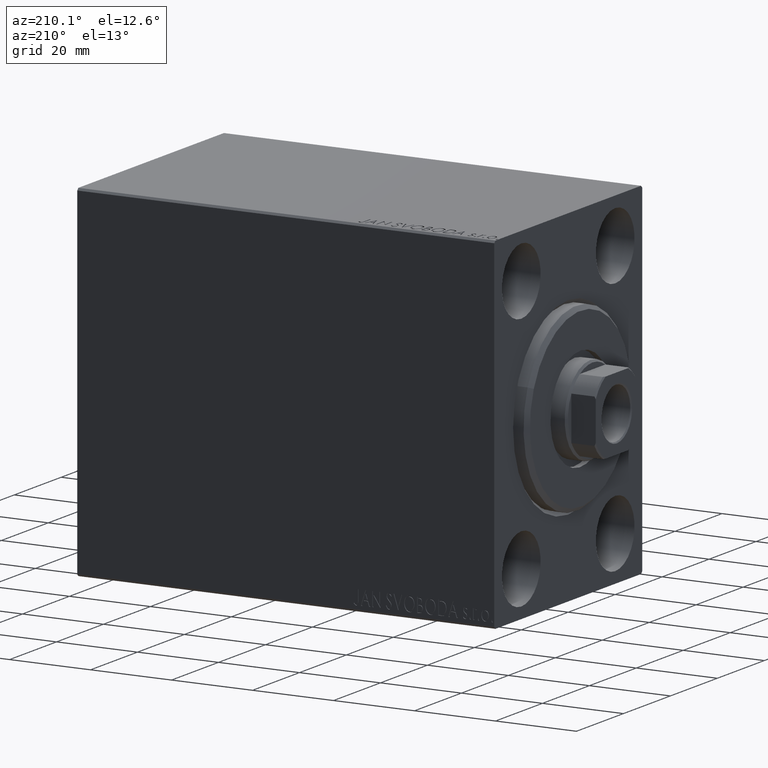
[diagram: clean part render]
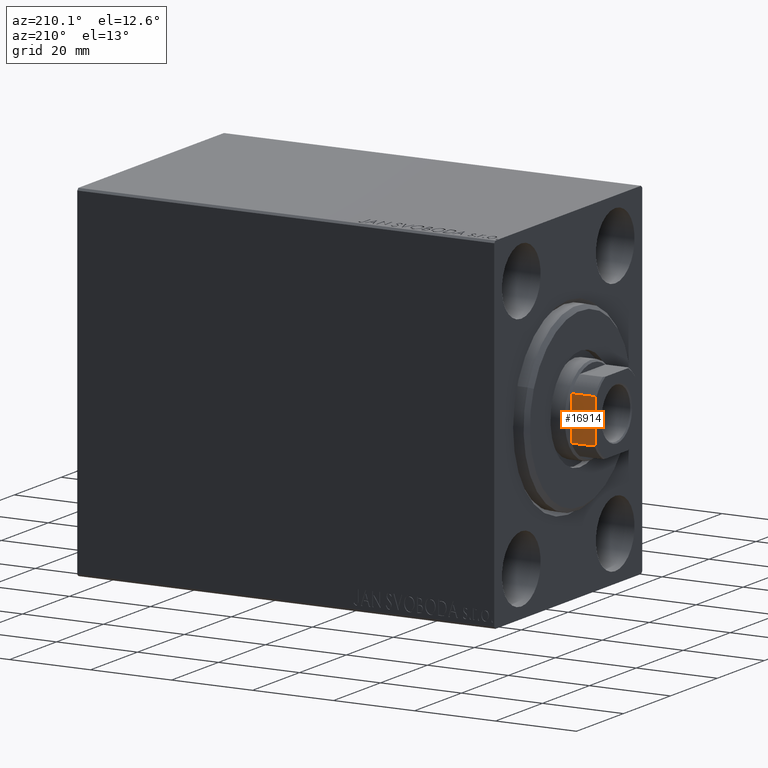
[diagram: same view with one face highlighted and labeled with its STEP entity id]
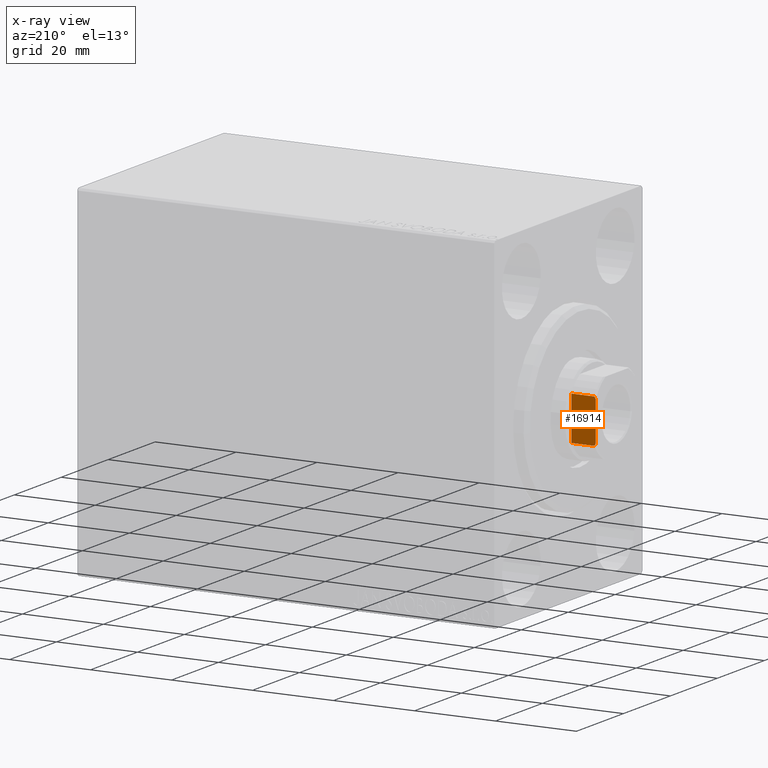
[diagram: x-ray of the same camera — body ghosted, the highlighted face saturated]
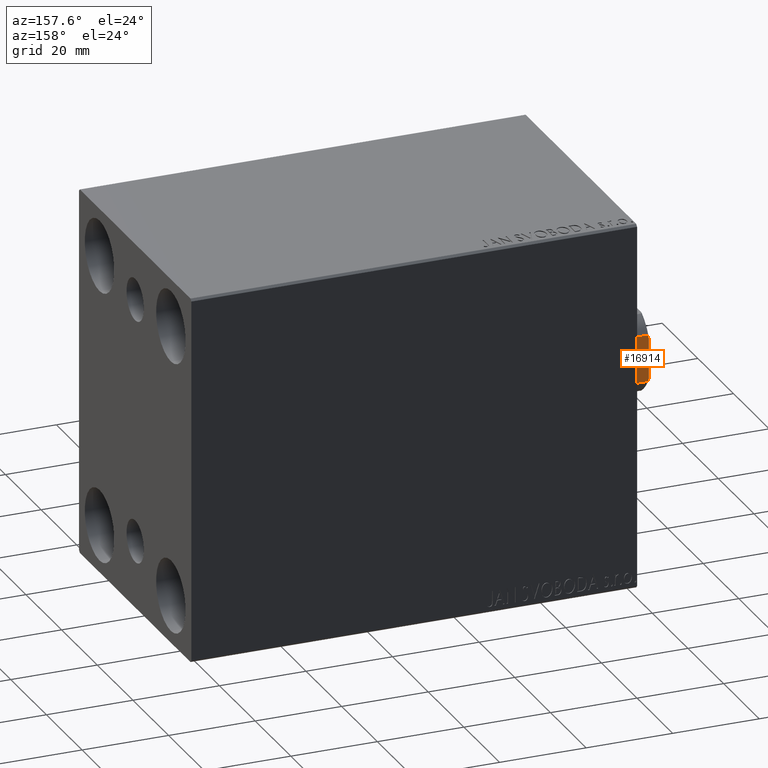
[diagram: same view with one face highlighted and labeled with its STEP entity id]
A machine part, auxiliary view. The second image highlights one B-rep face of the part: STEP entity #16914.
The next image is the same camera in x-ray: the body ghosted, the highlighted face saturated — about 0% of this face is hidden behind the body in this view.
A second angle (auxiliary view) of the same face is appended — the face is thin or edge-on in the first view.
In plain terms, the highlighted planar face has unit normal (0, -1, 0).
Its self-contained STEP definition (entity closure, byte-faithful):
#237 = EDGE_CURVE ( 'NONE', #21815, #38906, #36687, .T. ) ;
#1123 = EDGE_CURVE ( 'NONE', #41728, #43563, #13722, .T. ) ;
#3092 = CARTESIAN_POINT ( 'NONE',  ( 5.408326913195989682, 8.999999999999998224, -0.001000000000001000089 ) ) ;
#3445 = CARTESIAN_POINT ( 'NONE',  ( -5.408326913195988794, 8.999999999999998224, -0.001000000000001000089 ) ) ;
#3820 = VECTOR ( 'NONE', #33595, 1000.000000000000000 ) ;
#4168 = DIRECTION ( 'NONE',  ( 0.000000000000000000, -1.000000000000000000, 0.000000000000000000 ) ) ;
#5251 = CARTESIAN_POINT ( 'NONE',  ( 5.408326913195989682, 8.999999999999998224, 102.6999999999999886 ) ) ;
#5259 = DIRECTION ( 'NONE',  ( -1.000000000000000000, -0.000000000000000000, -0.000000000000000000 ) ) ;
#7389 = CARTESIAN_POINT ( 'NONE',  ( -5.408326913195988794, 8.999999999999998224, 102.7000000000000171 ) ) ;
#7709 = PLANE ( 'NONE',  #30957 ) ;
#7754 = VECTOR ( 'NONE', #5259, 1000.000000000000000 ) ;
#8575 = LINE ( 'NONE', #22055, #7754 ) ;
#8775 = CARTESIAN_POINT ( 'NONE',  ( -5.004607318780315062, 8.999999999999998224, 102.9037142029269347 ) ) ;
#10161 = DIRECTION ( 'NONE',  ( 0.000000000000000000, -0.000000000000000000, -1.000000000000000000 ) ) ;
#11028 = FACE_OUTER_BOUND ( 'NONE', #20801, .T. ) ;
#12127 = EDGE_CURVE ( 'NONE', #28832, #24281, #16712, .T. ) ;
#12802 = EDGE_CURVE ( 'NONE', #41728, #38906, #41450, .T. ) ;
#13722 = LINE ( 'NONE', #27199, #3820 ) ;
#14658 = CARTESIAN_POINT ( 'NONE',  ( 4.799999999999967848, 8.999999999999998224, 103.0000000000000142 ) ) ;
#15408 = CARTESIAN_POINT ( 'NONE',  ( -5.207299490555478805, 8.999999999999998224, 102.8035449543006905 ) ) ;
#15851 = CARTESIAN_POINT ( 'NONE',  ( -5.408326913195988794, 8.999999999999998224, 102.7000000000000171 ) ) ;
#15882 = CARTESIAN_POINT ( 'NONE',  ( 5.408326913195989682, 8.999999999999998224, 97.00000000000005684 ) ) ;
#16577 = DIRECTION ( 'NONE',  ( -0.000000000000000000, -0.000000000000000000, 1.000000000000000000 ) ) ;
#16712 = LINE ( 'NONE', #3445, #19503 ) ;
#16914 = ADVANCED_FACE ( 'NONE', ( #11028 ), #7709, .F. ) ;
#18447 = ORIENTED_EDGE ( 'NONE', *, *, #37511, .T. ) ;
#19503 = VECTOR ( 'NONE', #23995, 1000.000000000000000 ) ;
#20801 = EDGE_LOOP ( 'NONE', ( #43545, #33489, #32998, #38273, #25085, #18447 ) ) ;
#20976 = CARTESIAN_POINT ( 'NONE',  ( -9.000000000000001776, 8.999999999999998224, 103.0000000000000142 ) ) ;
#21815 = VERTEX_POINT ( 'NONE', #15882 ) ;
#22055 = CARTESIAN_POINT ( 'NONE',  ( -9.000000000000001776, 8.999999999999998224, 97.00000000000000000 ) ) ;
#22255 = CARTESIAN_POINT ( 'NONE',  ( -4.800000000000012257, 8.999999999999998224, 103.0000000000000142 ) ) ;
#23995 = DIRECTION ( 'NONE',  ( -0.000000000000000000, -0.000000000000000000, 1.000000000000000000 ) ) ;
#24281 = VERTEX_POINT ( 'NONE', #7389 ) ;
#25085 = ORIENTED_EDGE ( 'NONE', *, *, #12127, .T. ) ;
#25135 = CARTESIAN_POINT ( 'NONE',  ( 4.799999999999967848, 8.999999999999998224, 103.0000000000000142 ) ) ;
#26031 = EDGE_CURVE ( 'NONE', #21815, #28832, #8575, .T. ) ;
#27102 = VECTOR ( 'NONE', #16577, 1000.000000000000000 ) ;
#27199 = CARTESIAN_POINT ( 'NONE',  ( -9.000000000000001776, 8.999999999999998224, 103.0000000000000142 ) ) ;
#28567 = CARTESIAN_POINT ( 'NONE',  ( -4.800000000000012257, 8.999999999999998224, 103.0000000000000142 ) ) ;
#28832 = VERTEX_POINT ( 'NONE', #33932 ) ;
#30957 = AXIS2_PLACEMENT_3D ( 'NONE', #20976, #4168, #10161 ) ;
#32998 = ORIENTED_EDGE ( 'NONE', *, *, #237, .F. ) ;
#33246 = CARTESIAN_POINT ( 'NONE',  ( 5.408326913195989682, 8.999999999999998224, 102.6999999999999886 ) ) ;
#33489 = ORIENTED_EDGE ( 'NONE', *, *, #12802, .T. ) ;
#33595 = DIRECTION ( 'NONE',  ( -1.000000000000000000, -0.000000000000000000, -0.000000000000000000 ) ) ;
#33932 = CARTESIAN_POINT ( 'NONE',  ( -5.408326913195991459, 8.999999999999998224, 97.00000000000004263 ) ) ;
#35082 = B_SPLINE_CURVE_WITH_KNOTS ( 'NONE', 3,
 ( #15851, #15408, #8775, #22255 ),
 .UNSPECIFIED., .F., .F.,
 ( 4, 4 ),
 ( 0.000000000000000000, 0.0006782784334759147087 ),
 .UNSPECIFIED. ) ;
#36687 = LINE ( 'NONE', #3092, #27102 ) ;
#37511 = EDGE_CURVE ( 'NONE', #24281, #43563, #35082, .T. ) ;
#38183 = CARTESIAN_POINT ( 'NONE',  ( 5.004607318780281311, 8.999999999999998224, 102.9037142029269205 ) ) ;
#38273 = ORIENTED_EDGE ( 'NONE', *, *, #26031, .T. ) ;
#38629 = CARTESIAN_POINT ( 'NONE',  ( 5.207299490555463706, 8.999999999999998224, 102.8035449543006763 ) ) ;
#38906 = VERTEX_POINT ( 'NONE', #33246 ) ;
#41450 = B_SPLINE_CURVE_WITH_KNOTS ( 'NONE', 3,
 ( #25135, #38183, #38629, #5251 ),
 .UNSPECIFIED., .F., .F.,
 ( 4, 4 ),
 ( 8.673617379884035472E-19, 0.0006782784334759682683 ),
 .UNSPECIFIED. ) ;
#41728 = VERTEX_POINT ( 'NONE', #14658 ) ;
#43545 = ORIENTED_EDGE ( 'NONE', *, *, #1123, .F. ) ;
#43563 = VERTEX_POINT ( 'NONE', #28567 ) ;